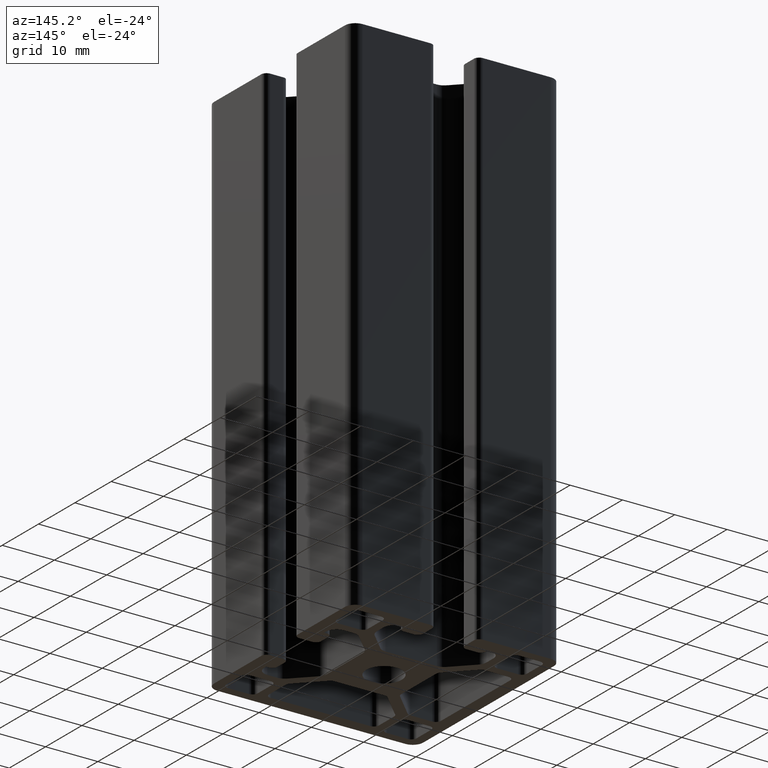
[diagram: clean part render]
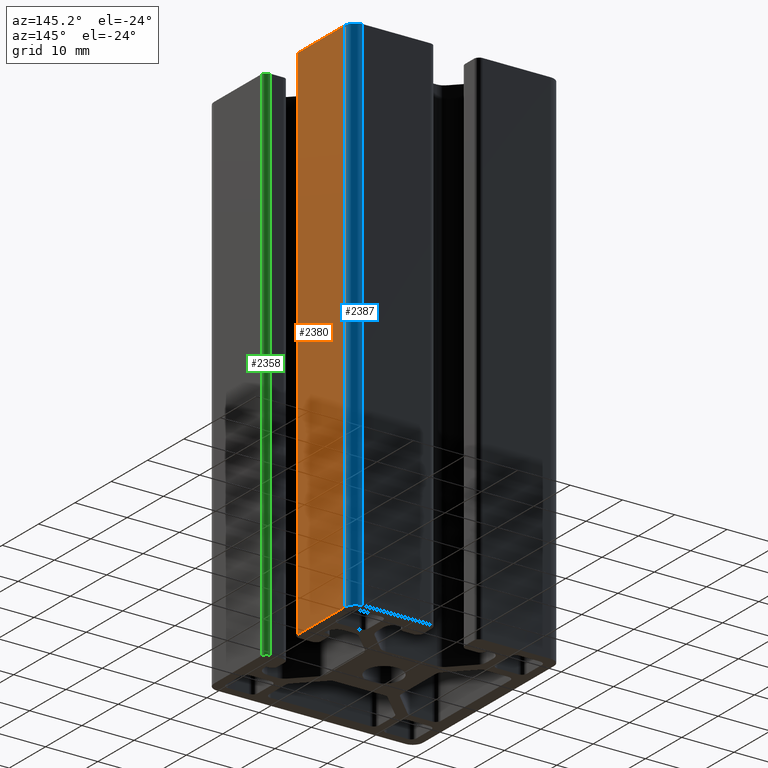
[diagram: same view with three faces highlighted in distinct colors, each labeled with its STEP entity id]
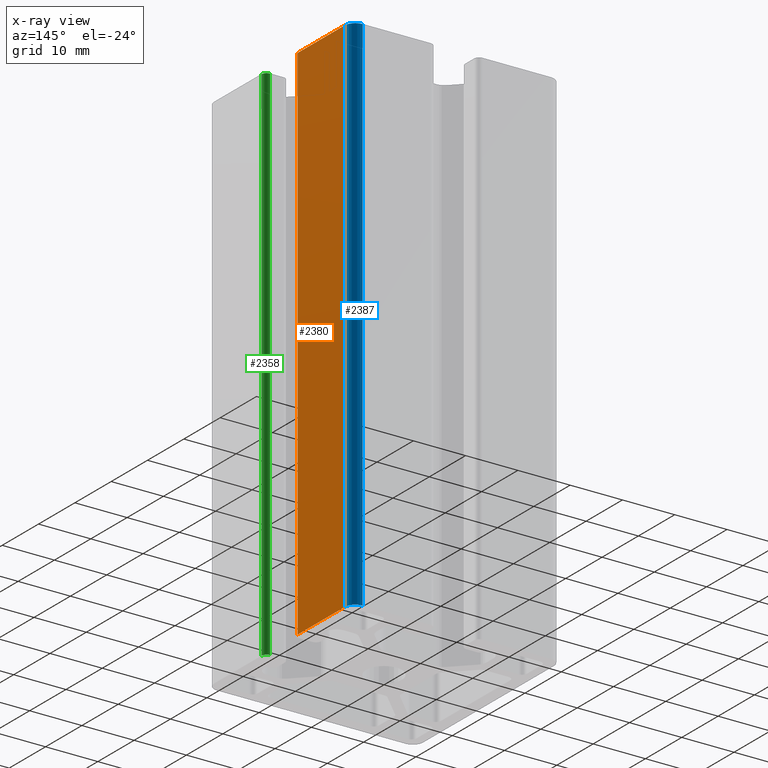
[diagram: x-ray of the same camera — body ghosted, the three highlighted faces saturated]
A machine part, auxiliary view with three faces highlighted in distinct colors.
The next image is the same camera in x-ray (body ghosted, the three faces saturated) — at least one of them is partly hidden behind the body in this view.
Their STEP definitions:

[orange] entity #2380 — the highlighted planar face has unit normal (1, 0, 0).
#309=FACE_OUTER_BOUND('',#429,.T.);
#429=EDGE_LOOP('',(#1940,#1941,#1942,#1943));
#631=LINE('',#3866,#867);
#673=LINE('',#3986,#909);
#674=LINE('',#3988,#910);
#675=LINE('',#3989,#911);
#867=VECTOR('',#3157,100.);
#909=VECTOR('',#3277,13.0000019959489);
#910=VECTOR('',#3278,100.);
#911=VECTOR('',#3279,13.0000019959489);
#1105=VERTEX_POINT('',#3860);
#1107=VERTEX_POINT('',#3864);
#1146=VERTEX_POINT('',#3985);
#1147=VERTEX_POINT('',#3987);
#1425=EDGE_CURVE('',#1105,#1107,#631,.T.);
#1485=EDGE_CURVE('',#1146,#1107,#673,.T.);
#1486=EDGE_CURVE('',#1146,#1147,#674,.T.);
#1487=EDGE_CURVE('',#1147,#1105,#675,.T.);
#1940=ORIENTED_EDGE('',*,*,#1425,.T.);
#1941=ORIENTED_EDGE('',*,*,#1485,.F.);
#1942=ORIENTED_EDGE('',*,*,#1486,.T.);
#1943=ORIENTED_EDGE('',*,*,#1487,.T.);
#2265=PLANE('',#2607);
#2380=ADVANCED_FACE('',(#309),#2265,.T.);
#2607=AXIS2_PLACEMENT_3D('',#3984,#3275,#3276);
#3157=DIRECTION('',(0.,0.,-1.));
#3275=DIRECTION('center_axis',(1.,0.,0.));
#3276=DIRECTION('ref_axis',(0.,1.,0.));
#3277=DIRECTION('',(0.,-1.,0.));
#3278=DIRECTION('',(0.,0.,1.));
#3279=DIRECTION('',(0.,-1.,0.));
#3860=CARTESIAN_POINT('',(20.,4.99999800405114,100.));
#3864=CARTESIAN_POINT('',(20.,4.99999800405114,0.));
#3866=CARTESIAN_POINT('',(20.,4.99999800405114,0.));
#3984=CARTESIAN_POINT('Origin',(20.,-18.,0.));
#3985=CARTESIAN_POINT('',(20.,18.,0.));
#3986=CARTESIAN_POINT('',(20.,-9.,0.));
#3987=CARTESIAN_POINT('',(20.,18.,100.));
#3988=CARTESIAN_POINT('',(20.,18.,0.));
#3989=CARTESIAN_POINT('',(20.,-9.,100.));

[blue] entity #2387 — the highlighted cylindrical surface (edge-blend (fillet) strip) has radius 2 mm, axis along (0, 0, 1).
#139=CIRCLE('',#2613,2.);
#142=CIRCLE('',#2621,2.);
#199=CYLINDRICAL_SURFACE('',#2620,2.);
#316=FACE_OUTER_BOUND('',#443,.T.);
#443=EDGE_LOOP('',(#2081,#2082,#2083,#2084));
#674=LINE('',#3988,#910);
#686=LINE('',#4023,#922);
#910=VECTOR('',#3278,100.);
#922=VECTOR('',#3314,100.);
#1146=VERTEX_POINT('',#3985);
#1147=VERTEX_POINT('',#3987);
#1154=VERTEX_POINT('',#4006);
#1158=VERTEX_POINT('',#4022);
#1486=EDGE_CURVE('',#1146,#1147,#674,.T.);
#1496=EDGE_CURVE('',#1154,#1147,#139,.T.);
#1504=EDGE_CURVE('',#1158,#1154,#686,.T.);
#1506=EDGE_CURVE('',#1158,#1146,#142,.T.);
#2081=ORIENTED_EDGE('',*,*,#1496,.T.);
#2082=ORIENTED_EDGE('',*,*,#1486,.F.);
#2083=ORIENTED_EDGE('',*,*,#1506,.F.);
#2084=ORIENTED_EDGE('',*,*,#1504,.T.);
#2387=ADVANCED_FACE('',(#316),#199,.T.);
#2613=AXIS2_PLACEMENT_3D('',#4007,#3295,#3296);
#2620=AXIS2_PLACEMENT_3D('',#4025,#3316,#3317);
#2621=AXIS2_PLACEMENT_3D('',#4026,#3318,#3319);
#3278=DIRECTION('',(0.,0.,1.));
#3295=DIRECTION('center_axis',(0.,0.,-1.));
#3296=DIRECTION('ref_axis',(-1.,0.,0.));
#3314=DIRECTION('',(0.,0.,1.));
#3316=DIRECTION('center_axis',(0.,0.,1.));
#3317=DIRECTION('ref_axis',(-1.,0.,0.));
#3318=DIRECTION('center_axis',(0.,0.,-1.));
#3319=DIRECTION('ref_axis',(-1.,0.,0.));
#3985=CARTESIAN_POINT('',(20.,18.,0.));
#3987=CARTESIAN_POINT('',(20.,18.,100.));
#3988=CARTESIAN_POINT('',(20.,18.,0.));
#4006=CARTESIAN_POINT('',(18.,20.,100.));
#4007=CARTESIAN_POINT('Origin',(18.,18.,100.));
#4022=CARTESIAN_POINT('',(18.,20.,0.));
#4023=CARTESIAN_POINT('',(18.,20.,0.));
#4025=CARTESIAN_POINT('Origin',(18.,18.,0.));
#4026=CARTESIAN_POINT('Origin',(18.,18.,0.));

[green] entity #2358 — the highlighted cylindrical surface (edge-blend (fillet) strip) has radius 1 mm, axis along (0, 0, 1).
#114=CIRCLE('',#2564,0.99999800405115);
#115=CIRCLE('',#2565,0.99999800405115);
#186=CYLINDRICAL_SURFACE('',#2563,0.99999800405115);
#287=FACE_OUTER_BOUND('',#407,.T.);
#407=EDGE_LOOP('',(#1852,#1853,#1854,#1855));
#627=LINE('',#3850,#863);
#629=LINE('',#3856,#865);
#863=VECTOR('',#3141,100.);
#865=VECTOR('',#3147,100.);
#1100=VERTEX_POINT('',#3847);
#1101=VERTEX_POINT('',#3849);
#1102=VERTEX_POINT('',#3853);
#1103=VERTEX_POINT('',#3855);
#1417=EDGE_CURVE('',#1101,#1100,#627,.T.);
#1419=EDGE_CURVE('',#1102,#1100,#114,.T.);
#1420=EDGE_CURVE('',#1102,#1103,#629,.T.);
#1421=EDGE_CURVE('',#1101,#1103,#115,.T.);
#1852=ORIENTED_EDGE('',*,*,#1419,.F.);
#1853=ORIENTED_EDGE('',*,*,#1420,.T.);
#1854=ORIENTED_EDGE('',*,*,#1421,.F.);
#1855=ORIENTED_EDGE('',*,*,#1417,.T.);
#2358=ADVANCED_FACE('',(#287),#186,.T.);
#2563=AXIS2_PLACEMENT_3D('',#3852,#3143,#3144);
#2564=AXIS2_PLACEMENT_3D('',#3854,#3145,#3146);
#2565=AXIS2_PLACEMENT_3D('',#3857,#3148,#3149);
#3141=DIRECTION('',(0.,0.,1.));
#3143=DIRECTION('center_axis',(0.,0.,1.));
#3144=DIRECTION('ref_axis',(-1.,8.88180192462339E-15,0.));
#3145=DIRECTION('center_axis',(0.,0.,1.));
#3146=DIRECTION('ref_axis',(-1.,8.88180192462339E-15,0.));
#3147=DIRECTION('',(0.,0.,-1.));
#3148=DIRECTION('center_axis',(0.,0.,-1.));
#3149=DIRECTION('ref_axis',(-1.,8.88180192462339E-15,0.));
#3847=CARTESIAN_POINT('',(19.0000019959489,-4.00000000000001,100.));
#3849=CARTESIAN_POINT('',(19.0000019959489,-4.00000000000001,0.));
#3850=CARTESIAN_POINT('',(19.0000019959489,-4.00000000000001,0.));
#3852=CARTESIAN_POINT('Origin',(19.0000019959489,-4.99999800405116,0.));
#3853=CARTESIAN_POINT('',(20.,-4.99999800405117,100.));
#3854=CARTESIAN_POINT('Origin',(19.0000019959489,-4.99999800405116,100.));
#3855=CARTESIAN_POINT('',(20.,-4.99999800405117,0.));
#3856=CARTESIAN_POINT('',(20.,-4.99999800405116,0.));
#3857=CARTESIAN_POINT('Origin',(19.0000019959489,-4.99999800405116,0.));